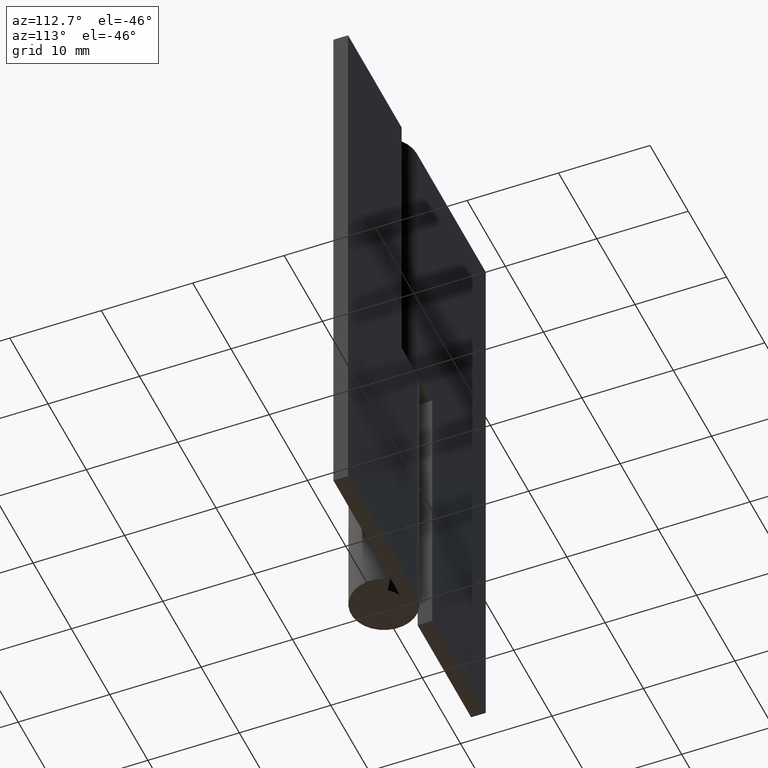
[diagram: clean part render]
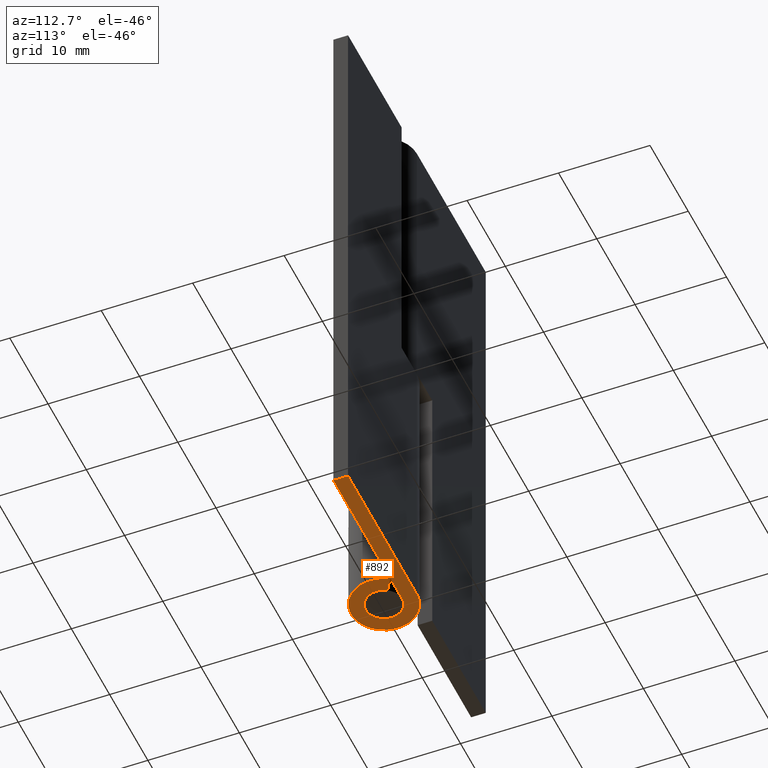
[diagram: same view with one face highlighted and labeled with its STEP entity id]
A machine part, auxiliary view. The second image highlights one B-rep face of the part: STEP entity #892.
In plain terms, the highlighted face is a freeform B-spline surface patch.
Its self-contained STEP definition (entity closure, byte-faithful):
#815=CARTESIAN_POINT('',(-4.678473124545302,-3.957971905411489,0.0));
#816=CARTESIAN_POINT('',(19.078899279957060,-3.957971905411489,0.0));
#817=CARTESIAN_POINT('',(-4.678473124545302,3.959558727219332,0.0));
#818=CARTESIAN_POINT('',(19.078899279957060,3.959558727219332,0.0));
#819=B_SPLINE_SURFACE_WITH_KNOTS('',1,1,((#815,#817),(#816,#818)),.UNSPECIFIED.,.F.,.F.,.U.,(2,2),(2,2),(0.0,23.757372404502370),(0.0,7.917530632630820),.UNSPECIFIED.);
#820=CARTESIAN_POINT('',(1.681186750152665,1.083333333333334,0.0));
#821=VERTEX_POINT('',#820);
#822=CARTESIAN_POINT('',(0.0,2.0,0.0));
#823=VERTEX_POINT('',#822);
#824=CARTESIAN_POINT('',(1.681186750152667,1.083333333333335,0.0));
#825=CARTESIAN_POINT('',(2.523010718282847,-0.223063560064879,0.0));
#826=CARTESIAN_POINT('',(1.465035332114957,-1.361496043202043,0.0));
#827=CARTESIAN_POINT('',(0.407059945947065,-2.499928526339208,0.0));
#828=CARTESIAN_POINT('',(-0.957427107756338,-1.755942292142124,0.0));
#829=CARTESIAN_POINT('',(-2.321914161459740,-1.011956057945040,0.0));
#830=CARTESIAN_POINT('',(-1.938025359003882,0.494021971027480,0.0));
#831=CARTESIAN_POINT('',(-1.554136556548024,2.0,0.0));
#832=CARTESIAN_POINT('',(0.0,2.0,0.0));
#840=(BOUNDED_CURVE()B_SPLINE_CURVE(2,(#824,#825,#826,#827,#828,#829,#830,#831,#832),.UNSPECIFIED.,.F.,.U.)B_SPLINE_CURVE_WITH_KNOTS((3,2,2,2,3),(0.0,0.250000000000000,0.500000000000000,0.750000000000000,1.0),.UNSPECIFIED.)CURVE()GEOMETRIC_REPRESENTATION_ITEM()RATIONAL_B_SPLINE_CURVE((1.0,0.789623639943024,1.0,0.789623639943024,1.0,0.789623639943024,1.0,0.789623639943024,1.0))REPRESENTATION_ITEM(''));
#841=EDGE_CURVE('',#821,#823,#840,.T.);
#842=ORIENTED_EDGE('',*,*,#841,.F.);
#843=CARTESIAN_POINT('',(3.026136150274800,1.950000000000000,0.0));
#844=VERTEX_POINT('',#843);
#845=CARTESIAN_POINT('',(3.026136150274800,1.950000000000000,0.0));
#846=CARTESIAN_POINT('',(1.681186750152665,1.083333333333334,0.0));
#847=QUASI_UNIFORM_CURVE('',1,(#845,#846),.UNSPECIFIED.,.F.,.U.);
#848=EDGE_CURVE('',#844,#821,#847,.T.);
#849=ORIENTED_EDGE('',*,*,#848,.F.);
#850=CARTESIAN_POINT('',(-0.003794732665984,3.599998000000000,0.0));
#851=VERTEX_POINT('',#850);
#852=CARTESIAN_POINT('',(3.026136150274802,1.950000000000000,0.0));
#853=CARTESIAN_POINT('',(4.541007253605536,-0.400874978869648,0.0));
#854=CARTESIAN_POINT('',(2.637709320543042,-2.449997865370572,0.0));
#855=CARTESIAN_POINT('',(0.734411387480545,-4.499120751871497,0.0));
#856=CARTESIAN_POINT('',(-1.721702721479355,-3.161603981976646,0.0));
#857=CARTESIAN_POINT('',(-4.177816830439255,-1.824087212081795,0.0));
#858=CARTESIAN_POINT('',(-3.489147561616325,0.886481411687160,0.0));
#859=CARTESIAN_POINT('',(-2.800478292793393,3.597050035456119,0.0));
#860=CARTESIAN_POINT('',(-0.003794732665985,3.599997999999999,0.0));
#868=(BOUNDED_CURVE()B_SPLINE_CURVE(2,(#852,#853,#854,#855,#856,#857,#858,#859,#860),.UNSPECIFIED.,.F.,.U.)B_SPLINE_CURVE_WITH_KNOTS((3,2,2,2,3),(0.0,0.250000000000000,0.500000000000000,0.750000000000000,1.0),.UNSPECIFIED.)CURVE()GEOMETRIC_REPRESENTATION_ITEM()RATIONAL_B_SPLINE_CURVE((1.0,0.789704480868727,1.0,0.789704480868727,1.0,0.789704480868727,1.0,0.789704480868727,1.0))REPRESENTATION_ITEM(''));
#869=EDGE_CURVE('',#844,#851,#868,.T.);
#870=ORIENTED_EDGE('',*,*,#869,.T.);
#871=CARTESIAN_POINT('',(18.0,3.599998000000000,0.0));
#872=VERTEX_POINT('',#871);
#873=CARTESIAN_POINT('',(18.0,3.599998000000000,0.0));
#874=CARTESIAN_POINT('',(-0.003794732665984,3.599998000000000,0.0));
#875=QUASI_UNIFORM_CURVE('',1,(#873,#874),.UNSPECIFIED.,.F.,.U.);
#876=EDGE_CURVE('',#872,#851,#875,.T.);
#877=ORIENTED_EDGE('',*,*,#876,.F.);
#878=CARTESIAN_POINT('',(18.0,2.0,0.0));
#879=VERTEX_POINT('',#878);
#880=CARTESIAN_POINT('',(18.0,2.0,0.0));
#881=CARTESIAN_POINT('',(18.0,3.599998000000000,0.0));
#882=QUASI_UNIFORM_CURVE('',1,(#880,#881),.UNSPECIFIED.,.F.,.U.);
#883=EDGE_CURVE('',#879,#872,#882,.T.);
#884=ORIENTED_EDGE('',*,*,#883,.F.);
#885=CARTESIAN_POINT('',(0.0,2.0,0.0));
#886=CARTESIAN_POINT('',(18.0,2.0,0.0));
#887=QUASI_UNIFORM_CURVE('',1,(#885,#886),.UNSPECIFIED.,.F.,.U.);
#888=EDGE_CURVE('',#823,#879,#887,.T.);
#889=ORIENTED_EDGE('',*,*,#888,.F.);
#890=EDGE_LOOP('',(#842,#849,#870,#877,#884,#889));
#891=FACE_OUTER_BOUND('',#890,.T.);
#892=ADVANCED_FACE('',(#891),#819,.F.);